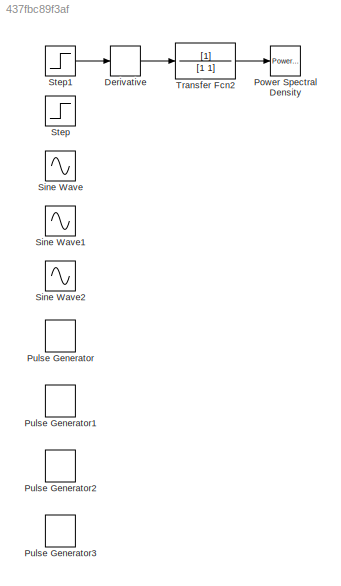
MODEL slx_437fbc89f3af
KIND model
CONFIG AbsTol = auto
CONFIG EnableMultiTasking = off
CONFIG FixedStep = auto
CONFIG MaxStep = auto
CONFIG MinStep = auto
CONFIG RelTol = 1e-3
CONFIG SampleTimeConstraint = Unconstrained
CONFIG SolverName = VariableStepAuto
CONFIG StartTime = 0.0
CONFIG StopTime = 10.0
BLOCK [Derivative] Derivative
BLOCK [Reference] Power Spectral Density  REF=simulink_extras/Additional
Sinks/Power Spectral
Density
  SourceBlock = simulink_extras/Additional\nSinks/Power Spectral\nDensity
  SourceType = Power Spectral Density
BLOCK [DiscretePulseGenerator] Pulse Generator
  Period = 1.5
  PulseType = Time based
  PulseWidth = 10
BLOCK [DiscretePulseGenerator] Pulse Generator1
  Period = 1.5
  PulseType = Time based
  PulseWidth = 80
BLOCK [DiscretePulseGenerator] Pulse Generator2
  Period = 0.4
  PulseType = Time based
  PulseWidth = 10
BLOCK [DiscretePulseGenerator] Pulse Generator3
  Period = 0.4
  PulseType = Time based
  PulseWidth = 80
BLOCK [Sin] Sine Wave
  Frequency = 3
  SampleTime = 0
BLOCK [Sin] Sine Wave1
  Frequency = 10
  SampleTime = 0
BLOCK [Sin] Sine Wave2
  Frequency = 25
  SampleTime = 0
BLOCK [Step] Step
  SampleTime = 0
BLOCK [Step] Step1
  SampleTime = 0
BLOCK [TransferFcn] Transfer Fcn2
  Denominator = [1 1]
LINE Derivative:1 -> Transfer Fcn2:1
LINE Step1:1 -> Derivative:1
LINE Transfer Fcn2:1 -> Power Spectral Density:1
